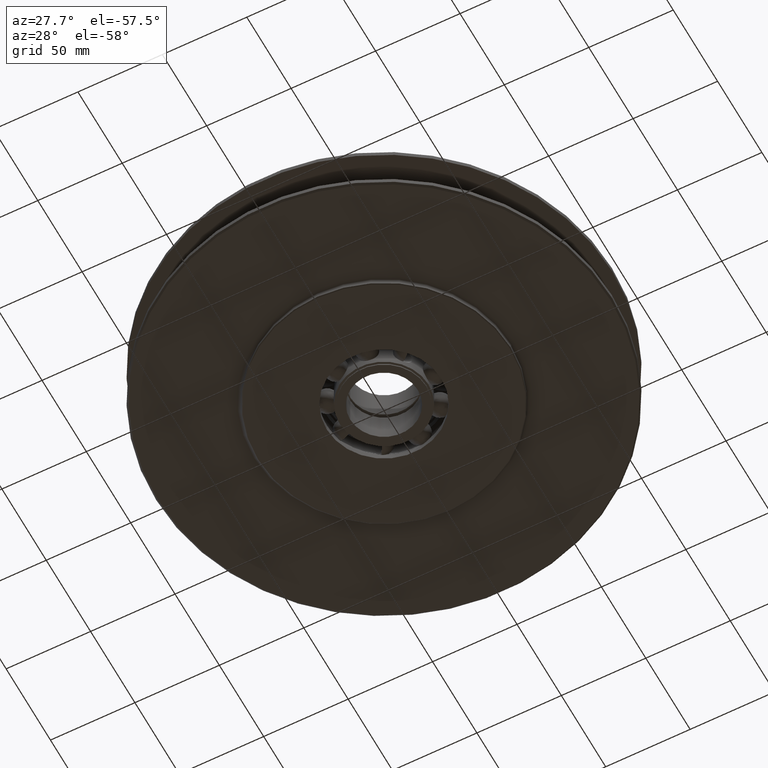
[diagram: clean part render]
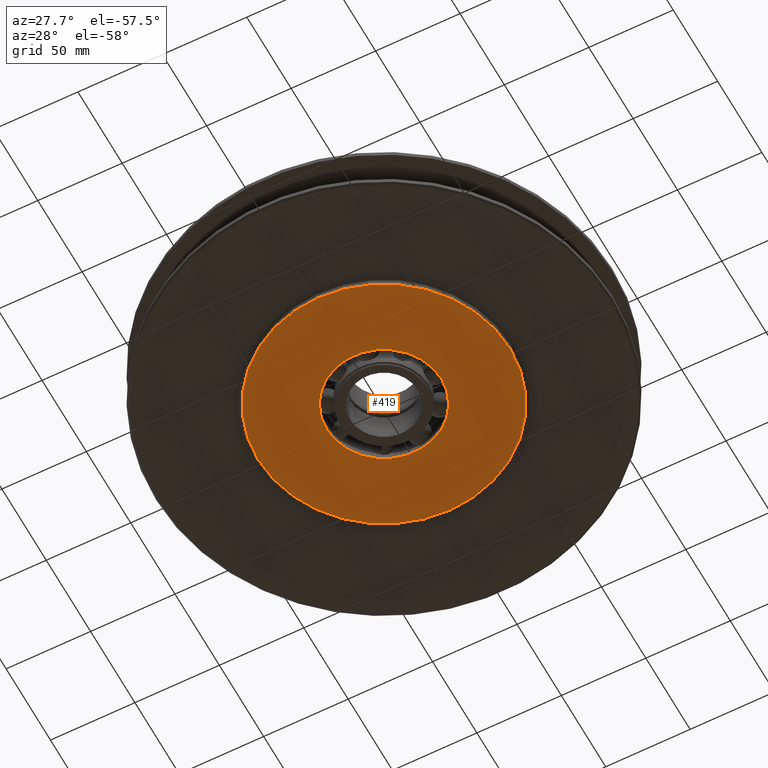
[diagram: same view with one face highlighted and labeled with its STEP entity id]
A machine part, auxiliary view. The second image highlights one B-rep face of the part: STEP entity #419.
In plain terms, the highlighted planar face has unit normal (-0, 0, -1).
Its self-contained STEP definition (entity closure, byte-faithful):
#419=ADVANCED_FACE('',(#867,#868),#869,.T.);
#867=FACE_BOUND('',#1317,.T.);
#868=FACE_OUTER_BOUND('',#1318,.T.);
#869=PLANE('',#1319);
#1317=EDGE_LOOP('',(#2735,#2736));
#1318=EDGE_LOOP('',(#2737,#2738));
#1319=AXIS2_PLACEMENT_3D('',#2739,#2740,#2741);
#2735=ORIENTED_EDGE('',*,*,#3280,.T.);
#2736=ORIENTED_EDGE('',*,*,#3191,.T.);
#2737=ORIENTED_EDGE('',*,*,#2954,.F.);
#2738=ORIENTED_EDGE('',*,*,#3394,.F.);
#2739=CARTESIAN_POINT('',(37.25,0.0,-19.5));
#2740=DIRECTION('',(-0.0,0.0,-1.0));
#2741=DIRECTION('',(-1.0,-0.0,0.0));
#2954=EDGE_CURVE('',#3644,#3646,#3647,.T.);
#3191=EDGE_CURVE('',#4044,#4042,#4045,.T.);
#3280=EDGE_CURVE('',#4042,#4044,#4175,.T.);
#3394=EDGE_CURVE('',#3646,#3644,#4299,.T.);
#3644=VERTEX_POINT('',#6071);
#3646=VERTEX_POINT('',#6074);
#3647=CIRCLE('',#6075,74.5);
#4042=VERTEX_POINT('',#8501);
#4044=VERTEX_POINT('',#8504);
#4045=CIRCLE('',#8505,33.95);
#4175=CIRCLE('',#9224,33.95);
#4299=CIRCLE('',#10414,74.5);
#6071=CARTESIAN_POINT('',(74.5,0.0,-19.5));
#6074=CARTESIAN_POINT('',(-74.5,9.12361865364778E-015,-19.5));
#6075=AXIS2_PLACEMENT_3D('',#10627,#10628,#10629);
#8501=CARTESIAN_POINT('',(33.95,0.0,-19.5));
#8504=CARTESIAN_POINT('',(-33.95,-4.15767588310526E-015,-19.5));
#8505=AXIS2_PLACEMENT_3D('',#10935,#10936,#10937);
#9224=AXIS2_PLACEMENT_3D('',#11038,#11039,#11040);
#10414=AXIS2_PLACEMENT_3D('',#11098,#11099,#11100);
#10627=CARTESIAN_POINT('',(0.0,0.0,-19.5));
#10628=DIRECTION('',(0.0,0.0,1.0));
#10629=DIRECTION('',(1.0,0.0,0.0));
#10935=CARTESIAN_POINT('',(0.0,0.0,-19.5));
#10936=DIRECTION('',(0.0,-0.0,1.0));
#10937=DIRECTION('',(1.0,0.0,0.0));
#11038=CARTESIAN_POINT('',(0.0,0.0,-19.5));
#11039=DIRECTION('',(0.0,-0.0,1.0));
#11040=DIRECTION('',(1.0,0.0,0.0));
#11098=CARTESIAN_POINT('',(0.0,0.0,-19.5));
#11099=DIRECTION('',(0.0,0.0,1.0));
#11100=DIRECTION('',(1.0,0.0,0.0));